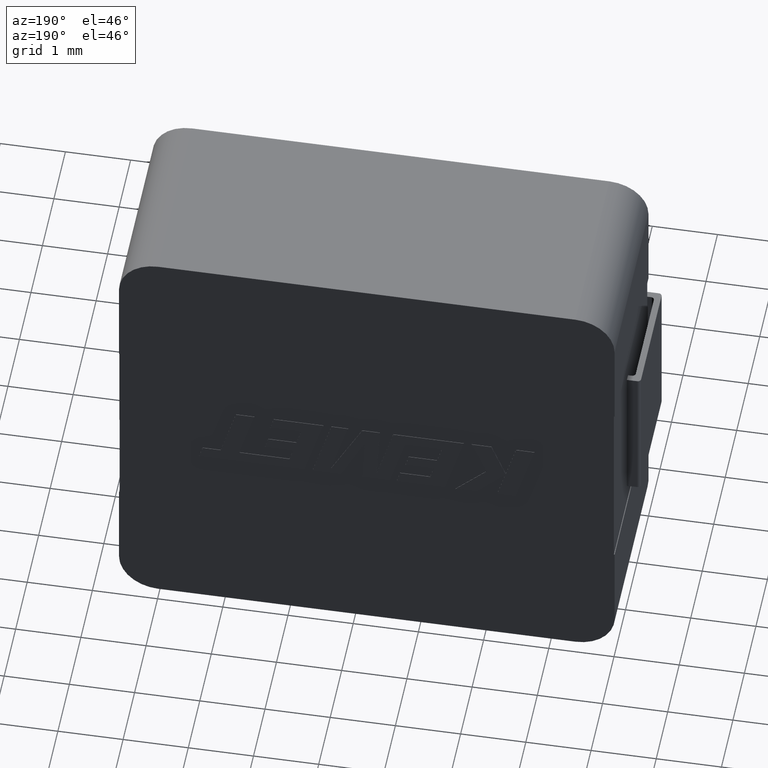
[diagram: clean part render]
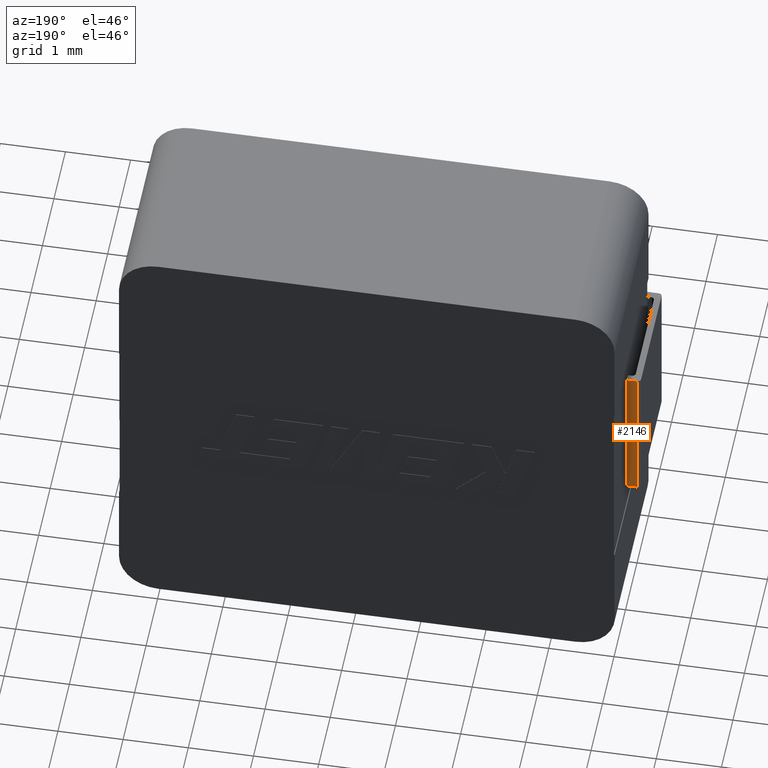
[diagram: same view with one face highlighted and labeled with its STEP entity id]
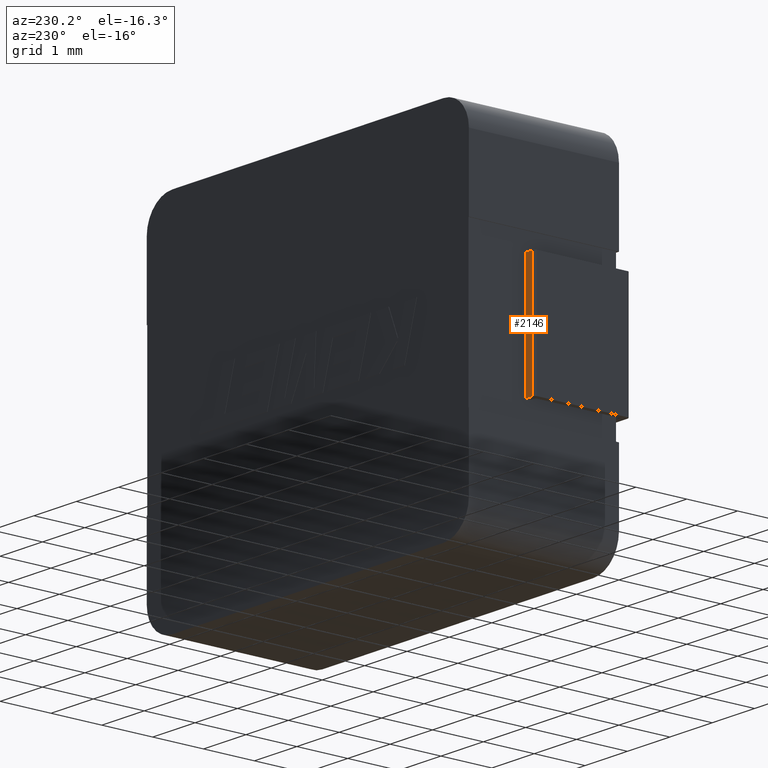
[diagram: same view with one face highlighted and labeled with its STEP entity id]
A machine part, auxiliary view. The second image highlights one B-rep face of the part: STEP entity #2146.
A second angle (auxiliary view) of the same face is appended — the face is thin or edge-on in the first view.
In plain terms, the highlighted planar face has unit normal (0, 1, -0).
Its self-contained STEP definition (entity closure, byte-faithful):
#40 = CARTESIAN_POINT ( 'NONE',  ( 0.01000000000000000000, 1.825000000000000000, -4.650000000000000400 ) ) ;
#186 = EDGE_CURVE ( 'NONE', #3170, #1620, #2431, .T. ) ;
#226 = CARTESIAN_POINT ( 'NONE',  ( 0.01000000000000000000, 1.825000000000000000, -4.650000000000000400 ) ) ;
#289 = LINE ( 'NONE', #2167, #2922 ) ;
#558 = CARTESIAN_POINT ( 'NONE',  ( 0.01000000000000000000, 1.825000000000000000, -4.650000000000000400 ) ) ;
#622 = EDGE_CURVE ( 'NONE', #1620, #1239, #2633, .T. ) ;
#867 = EDGE_CURVE ( 'NONE', #3170, #2981, #2525, .T. ) ;
#1080 = AXIS2_PLACEMENT_3D ( 'NONE', #558, #2097, #3718 ) ;
#1171 = CARTESIAN_POINT ( 'NONE',  ( -0.1500000000000000500, 1.825000000000000000, -4.650000000000000400 ) ) ;
#1239 = VERTEX_POINT ( 'NONE', #3848 ) ;
#1316 = ORIENTED_EDGE ( 'NONE', *, *, #186, .T. ) ;
#1578 = ORIENTED_EDGE ( 'NONE', *, *, #867, .F. ) ;
#1620 = VERTEX_POINT ( 'NONE', #1171 ) ;
#2097 = DIRECTION ( 'NONE',  ( 0.0000000000000000000, 1.000000000000000000, -0.0000000000000000000 ) ) ;
#2146 = ADVANCED_FACE ( 'NONE', ( #2290 ), #3012, .T. ) ;
#2167 = CARTESIAN_POINT ( 'NONE',  ( 0.01000000000000000000, 1.825000000000000000, -2.350000000000000500 ) ) ;
#2225 = ORIENTED_EDGE ( 'NONE', *, *, #4077, .F. ) ;
#2266 = DIRECTION ( 'NONE',  ( 0.0000000000000000000, 0.0000000000000000000, 1.000000000000000000 ) ) ;
#2288 = DIRECTION ( 'NONE',  ( -1.000000000000000000, 0.0000000000000000000, 0.0000000000000000000 ) ) ;
#2290 = FACE_OUTER_BOUND ( 'NONE', #3567, .T. ) ;
#2323 = CARTESIAN_POINT ( 'NONE',  ( -0.1500000000000000500, 1.825000000000000000, -4.650000000000000400 ) ) ;
#2422 = VECTOR ( 'NONE', #2447, 1000.000000000000000 ) ;
#2431 = LINE ( 'NONE', #40, #3618 ) ;
#2447 = DIRECTION ( 'NONE',  ( 0.0000000000000000000, 0.0000000000000000000, 1.000000000000000000 ) ) ;
#2525 = LINE ( 'NONE', #226, #2422 ) ;
#2633 = LINE ( 'NONE', #2323, #3286 ) ;
#2776 = CARTESIAN_POINT ( 'NONE',  ( 0.01000000000000000000, 1.825000000000000000, -4.650000000000000400 ) ) ;
#2922 = VECTOR ( 'NONE', #4081, 1000.000000000000000 ) ;
#2981 = VERTEX_POINT ( 'NONE', #3310 ) ;
#3012 = PLANE ( 'NONE',  #1080 ) ;
#3170 = VERTEX_POINT ( 'NONE', #2776 ) ;
#3286 = VECTOR ( 'NONE', #2266, 1000.000000000000000 ) ;
#3310 = CARTESIAN_POINT ( 'NONE',  ( 0.01000000000000000000, 1.825000000000000000, -2.350000000000000500 ) ) ;
#3522 = ORIENTED_EDGE ( 'NONE', *, *, #622, .T. ) ;
#3567 = EDGE_LOOP ( 'NONE', ( #1316, #3522, #2225, #1578 ) ) ;
#3618 = VECTOR ( 'NONE', #2288, 1000.000000000000000 ) ;
#3718 = DIRECTION ( 'NONE',  ( 0.0000000000000000000, 0.0000000000000000000, 1.000000000000000000 ) ) ;
#3848 = CARTESIAN_POINT ( 'NONE',  ( -0.1500000000000000500, 1.825000000000000000, -2.350000000000000500 ) ) ;
#4077 = EDGE_CURVE ( 'NONE', #2981, #1239, #289, .T. ) ;
#4081 = DIRECTION ( 'NONE',  ( -1.000000000000000000, 0.0000000000000000000, 0.0000000000000000000 ) ) ;